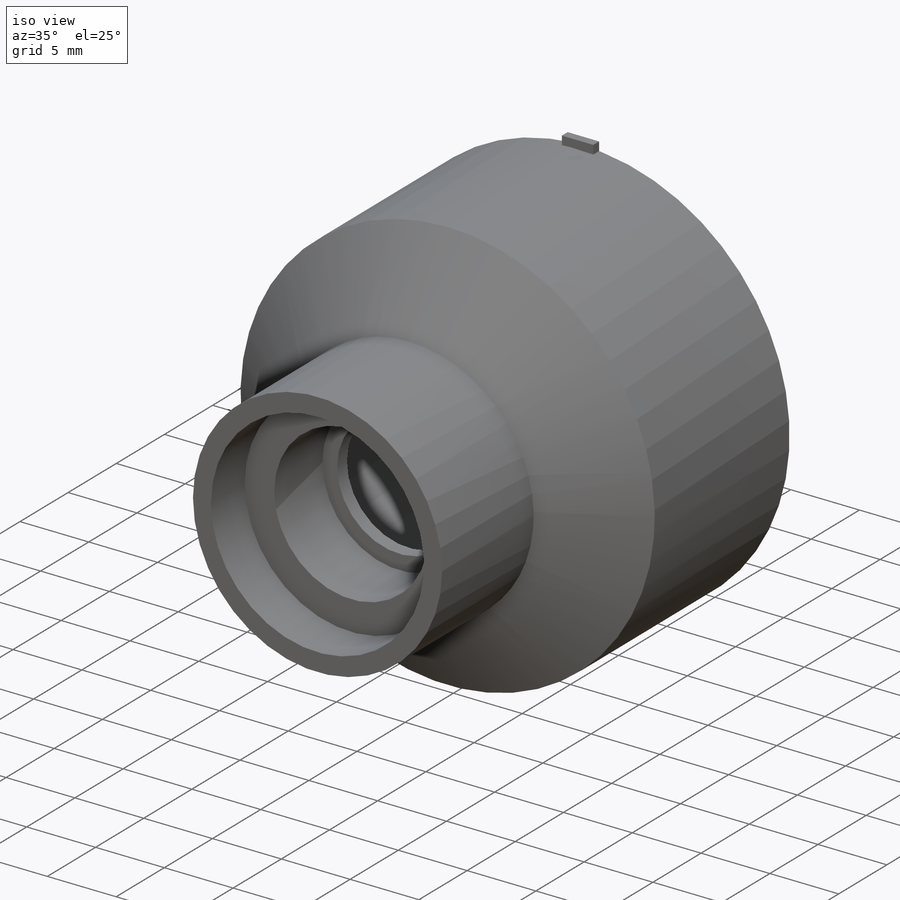
[diagram: iso view]
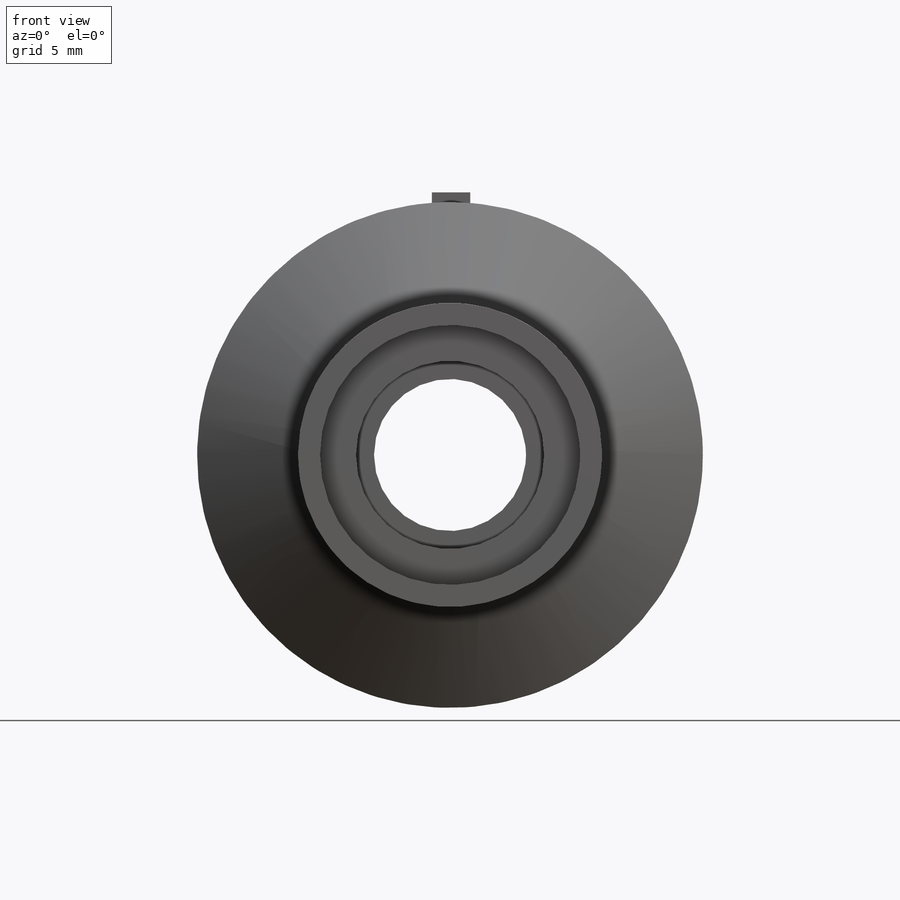
[diagram: front view]
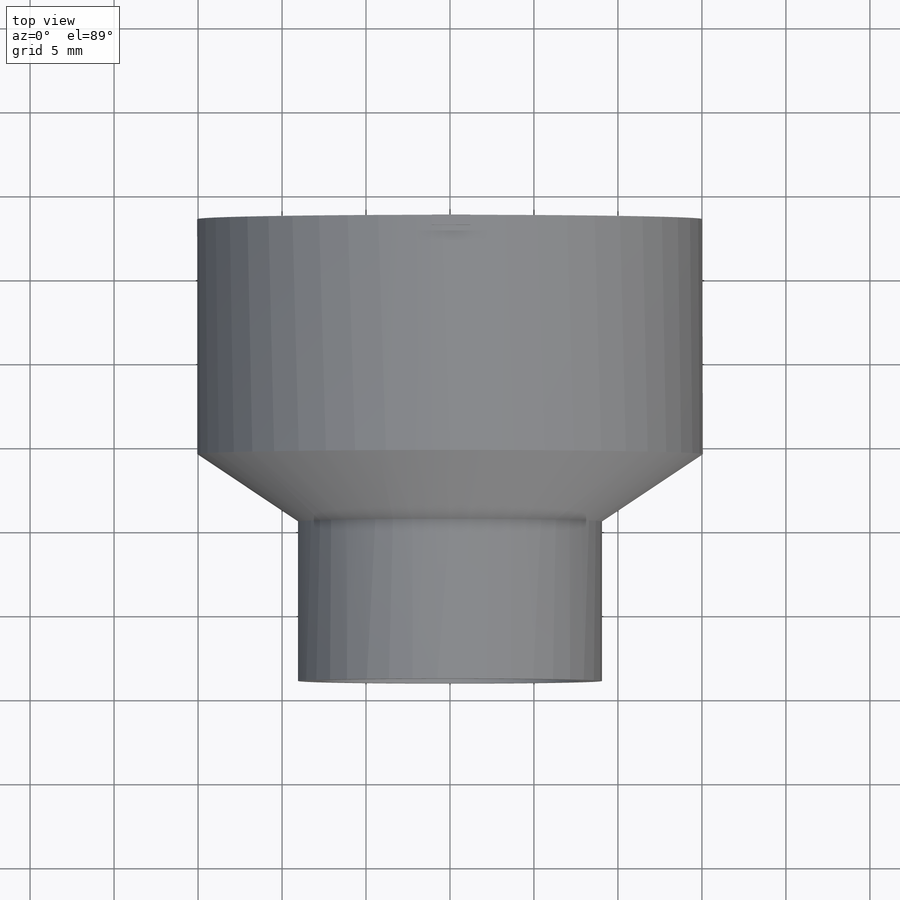
[diagram: top view]
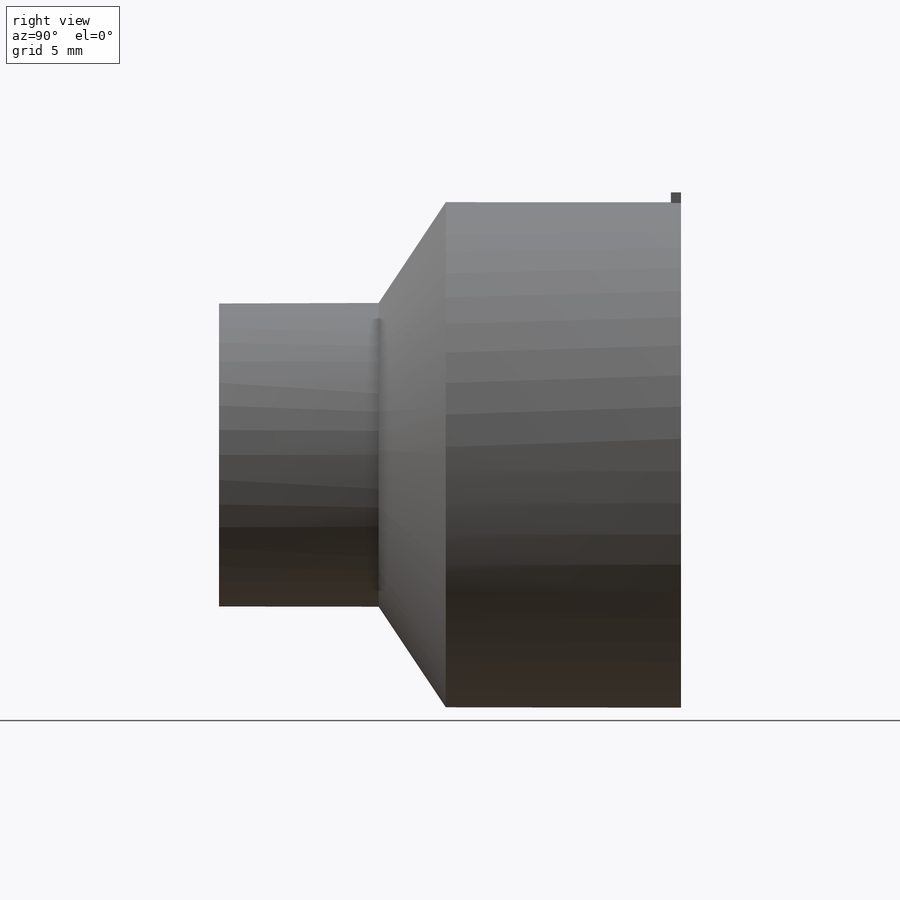
[diagram: right view]
SOLIDWORKS PART (.sldprt)
format: sldprt  version: not decoded by parser v0  size: 324,096 bytes
history: native  units: mm
features: sketch x14, extrude x10, plane x3, material x1, revolve x1 (+9 scaffold rows collapsed)
feature tree (38):
  scaffold x9  (default folders/planes/origin — collapsed)
  material  "Material <sin especificar>"
  plane  "Alzado"
  plane  "Planta"
  plane  "Vista lateral"
  sketch  "Croquis1"  dims[D1=28.1mm D2=1.0mm]
  extrude  "Saliente-Extruir1"  Depth=0.6mm
  sketch  "Croquis2"  dims[D1=0.0mm D2=4.0]
  extrude  "Saliente-Extruir2"  Depth=0.4mm
  sketch  "Croquis3"  dims[D1=0.0mm]
  sketch  "Croquis4"  dims[c1.D1=~2.197263mm c2.D1=45.0deg c2.D2=4.0mm c3.D1=~0.707107mm c3.D2=6.0mm]
  revolve  "Revolución1"  Angle=360deg
  sketch  "Croquis5"
  extrude  "Saliente-Extruir3"  Depth=0.4mm
  sketch  "Croquis6"  dims[D1=4.0]
  sketch  "Croquis7"  dims[D1=0.0mm]
  extrude  "Saliente-Extruir4"  Depth=13mm
  sketch  "Croquis8"
  extrude  "Saliente-Extruir5"  Depth=0.6mm
  sketch  "Croquis10"  dims[D1=9.05mm D2=2.0mm]
  extrude  "Saliente-Extruir6"  Depth=1mm
  sketch  "Croquis11"  dims[D1=~2.681923mm]
  extrude  "Saliente-Extruir7"  Depth=5mm
  sketch  "Croquis12"
  extrude  "Saliente-Extruir9"  [1 undecoded]
  sketch  "Croquis13"  dims[D1=15.48mm]
  extrude  "Saliente-Extruir10"  Depth=3.5mm
  sketch  "Croquis14"
  extrude  "Saliente-Extruir11"  [1 undecoded]
  sketch  "Croquis17"
decode coverage: 18 of 25 modeling features carry decoded parameters
note: ~ marks probable driven/reference dimensions
note: 2 parameter values undecoded
note: suppression state not decoded; provenance and decode notes live in map.json
